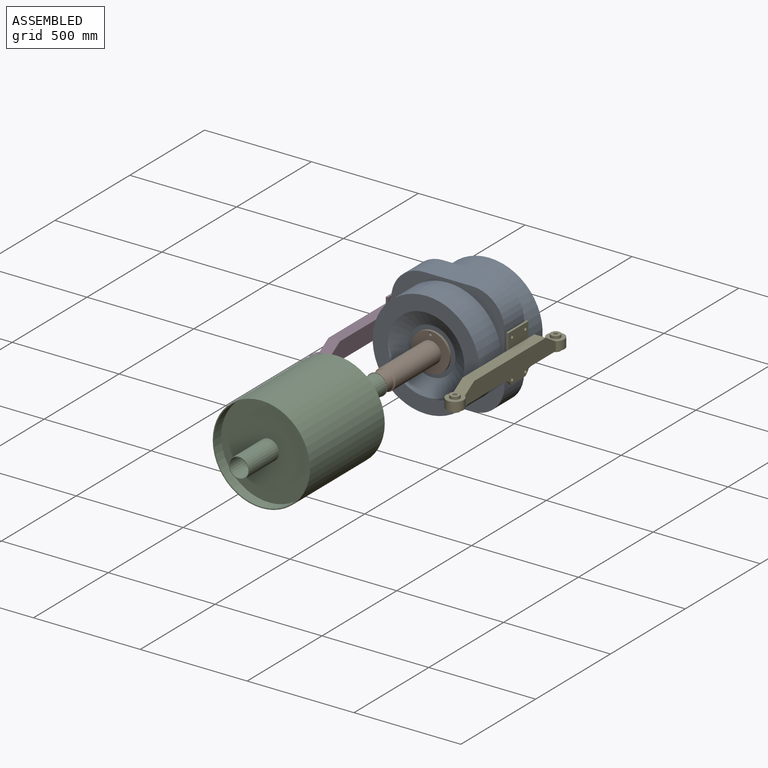
[diagram: assembled view]
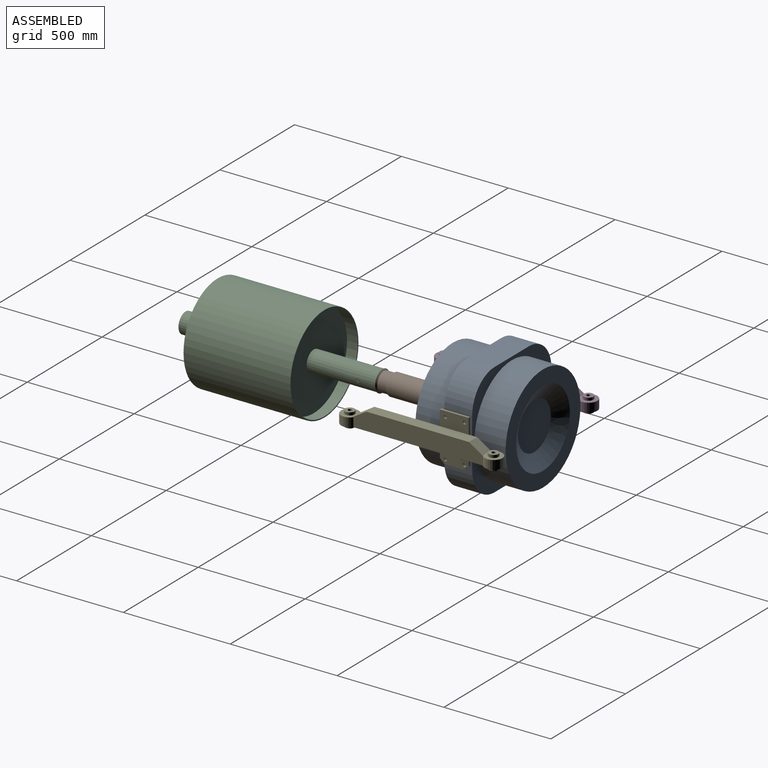
[diagram: assembled view, second angle]
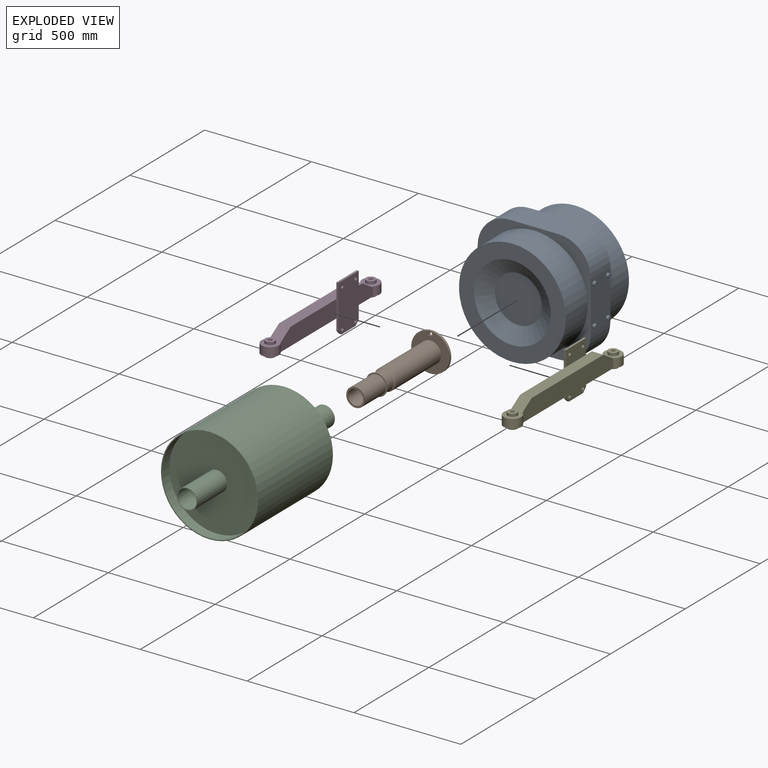
[diagram: exploded view]
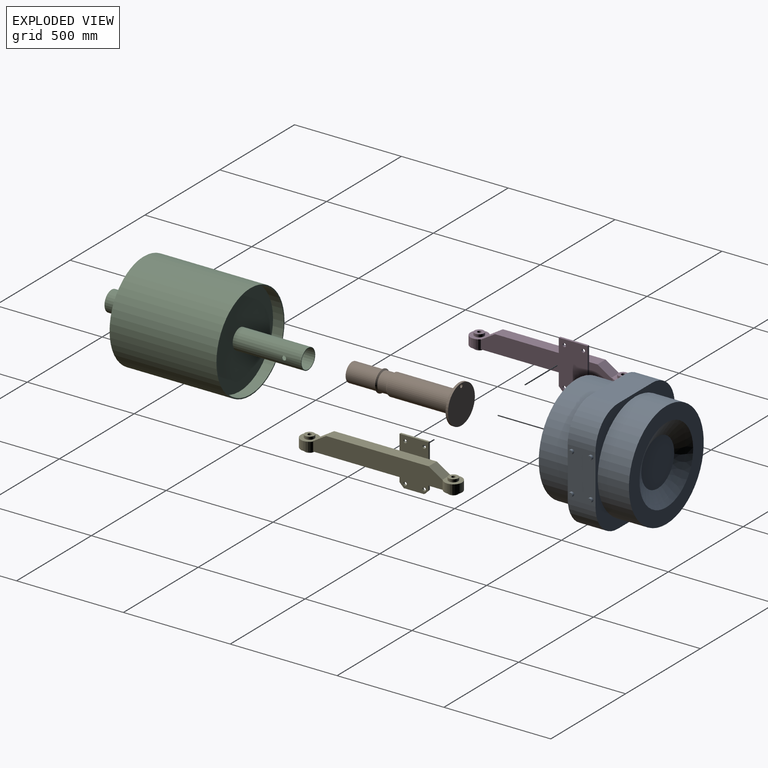
[diagram: exploded view, second angle]
ASSEMBLY  parts=5 mates=4
PART A: 34 faces, bbox 554x422x530 mm
  f0: plane 230x130mm, normal (0,0,1), area 29900mm2, adj f4,f5,f22,f25
  f1: plane 230x130mm, normal (-1,0,0), area 28643.4mm2, adj f4,f5,f8,f13,f17,f21,f22,f23
  f2: plane 230x130mm, normal (0,0,-1), area 29900mm2, adj f4,f5,f23,f24
  f3: plane 230x130mm, normal (1,0,0), area 28643.4mm2, adj f4,f5,f7,f11,f15,f19,f24,f25
  f4: plane 530x530mm, normal (0,-1,0), area 65236.3mm2, adj f0,f1,f2,f3,f22,f23,f24,f25
  f5: plane 530x530mm, normal (0,1,0), area 65236.3mm2, adj f0,f1,f2,f3,f22,f23,f24,f25
  f6: plane 20x20mm, normal (1,0,0), area 314.2mm2, adj f7
  f7: cylinder r=10mm len=20mm, axis (-1,0,0), area 754mm2, adj f3,f6
  f8: cylinder r=10mm len=20mm, axis (-1,0,0), area 754mm2, adj f1,f9
  f9: plane 20x20mm, normal (-1,0,0), area 314.2mm2, adj f8
  f10: plane 20x20mm, normal (1,0,0), area 314.2mm2, adj f11
  f11: cylinder r=10mm len=20mm, axis (-1,0,0), area 754mm2, adj f3,f10
  f12: plane 20x20mm, normal (-1,0,0), area 314.2mm2, adj f13
  f13: cylinder r=10mm len=20mm, axis (-1,0,0), area 754mm2, adj f1,f12
  f14: plane 20x20mm, normal (1,0,0), area 314.2mm2, adj f15
  f15: cylinder r=10mm len=20mm, axis (-1,0,0), area 754mm2, adj f3,f14
  f16: plane 20x20mm, normal (-1,0,0), area 314.2mm2, adj f17
  f17: cylinder r=10mm len=20mm, axis (-1,0,0), area 754mm2, adj f1,f16
  f18: plane 20x20mm, normal (1,0,0), area 314.2mm2, adj f19
  f19: cylinder r=10mm len=20mm, axis (-1,0,0), area 754mm2, adj f3,f18
  f20: plane 20x20mm, normal (-1,0,0), area 314.2mm2, adj f21
  f21: cylinder r=10mm len=20mm, axis (-1,0,0), area 754mm2, adj f1,f20
  f22: cylinder r=150mm len=150mm, axis (0,-1,0), area 30630.5mm2, adj f0,f1,f4,f5
  f23: cylinder r=150mm len=150mm, axis (0,1,0), area 30630.5mm2, adj f1,f2,f4,f5
  f24: cylinder r=150mm len=150mm, axis (0,-1,0), area 30630.5mm2, adj f2,f3,f4,f5
  f25: cylinder r=150mm len=150mm, axis (0,1,0), area 30630.5mm2, adj f0,f3,f4,f5
  f26: cylinder r=250mm len=500mm, axis (0,1,0), area 229336.3mm2, adj f4,f28
  f27: cylinder r=250mm len=500mm, axis (0,1,0), area 229336.3mm2, adj f5,f29
  f28: plane 500x500mm, normal (0,-1,0), area 95372.3mm2, adj f26,f32
  f29: plane 500x500mm, normal (0,1,0), area 95372.3mm2, adj f27,f33
  f30: plane 220x220mm, normal (0,1,0), area 38013.3mm2, adj f33
  f31: plane 220x220mm, normal (0,-1,0), area 38013.3mm2, adj f32
  f32: cone r=110mm half-angle=60deg, axis (0,-1,0), area 72704.5mm2, adj f28,f31
  f33: cone r=179.28mm half-angle=60deg, axis (0,1,0), area 72704.5mm2, adj f29,f30
PART B: 17 faces, bbox 180x511x180 mm
  f0: cylinder r=44mm len=88mm, axis (0,1,0), area 11611.3mm2, adj f6,f13
  f1: cylinder r=8mm len=16mm, axis (0,1,0), area 552.9mm2, adj f3,f4
  f2: cylinder r=90mm len=180mm, axis (0,1,0), area 6220.4mm2, adj f3,f4
  f3: plane 180x180mm, normal (0,-1,0), area 17391.9mm2, adj f1,f2,f5
  f4: plane 180x180mm, normal (0,1,0), area 25245.8mm2, adj f1,f2
  f5: cylinder r=50mm len=304mm, axis (0,1,0), area 95504.4mm2, adj f3,f6
  f6: cone r=44mm half-angle=45deg, axis (0,1,0), area 2505.8mm2, adj f0,f5
  f7: plane 100x100mm, normal (0,-1,0), area 1771.9mm2, adj f8,f9
  f8: cylinder r=50mm len=100mm, axis (0,-1,0), area 628.3mm2, adj f7,f13
  f9: cylinder r=44mm len=140mm, axis (0,1,0), area 38704.4mm2, adj f7,f10
  f10: plane 88x88mm, normal (0,-1,0), area 2233.7mm2, adj f9,f11
  f11: cylinder r=35mm len=140mm, axis (0,-1,0), area 30787.6mm2, adj f10,f12
  f12: plane 70x70mm, normal (0,-1,0), area 3848.5mm2, adj f11
  f13: cone r=50mm half-angle=45deg, axis (0,-1,0), area 2505.8mm2, adj f0,f8
  f14: plane 70x70mm, normal (0,1,0), area 3848.5mm2, adj f16
  f15: plane 70x70mm, normal (0,-1,0), area 3848.5mm2, adj f16
  f16: cylinder r=35mm len=202mm, axis (0,-1,0), area 44422.1mm2, adj f14,f15
PART C: 22 faces, bbox 920x455x455 mm
  f0: cylinder r=47.5mm len=200mm, axis (-1,0,0), area 59690.3mm2, adj f5,f13
  f1: cylinder r=222.5mm len=445mm, axis (-1,0,0), area 69900.4mm2, adj f11,f13
  f2: plane 445x445mm, normal (-1,0,0), area 148440.3mm2, adj f4,f9
  f3: cylinder r=44.3mm len=920mm, axis (-1,0,0), area 255446.2mm2, adj f5,f6,f7,f8
  f4: cylinder r=47.5mm len=320mm, axis (-1,0,0), area 94873.8mm2, adj f2,f6,f7,f8
  f5: plane 95x95mm, normal (1,0,0), area 922.9mm2, adj f0,f3
  f6: plane 95x95mm, normal (-1,0,0), area 922.9mm2, adj f3,f4
  f7: cylinder r=10mm len=20mm, axis (0,0,1), area 203.5mm2, adj f3,f4
  f8: cylinder r=10mm len=20mm, axis (0,0,1), area 203.5mm2, adj f3,f4
  f9: cylinder r=222.5mm len=445mm, axis (-1,0,0), area 69900.4mm2, adj f2,f12
  f10: cylinder r=227.5mm len=500mm, axis (-1,0,0), area 714712.3mm2, adj f11,f12
  f11: plane 455x455mm, normal (1,0,0), area 7068.6mm2, adj f1,f10
  f12: plane 455x455mm, normal (-1,0,0), area 7068.6mm2, adj f9,f10
  f13: plane 445x445mm, normal (1,0,0), area 148440.3mm2, adj f0,f1
  f14: cylinder r=47.5mm len=192.5mm, axis (-1,0,0), area 57451.9mm2, adj f15,f17
  f15: plane 445x445mm, normal (1,0,0), area 148440.3mm2, adj f14,f16
  f16: cylinder r=222.5mm len=445mm, axis (-1,0,0), area 269116.7mm2, adj f15,f17
  f17: plane 445x445mm, normal (-1,0,0), area 148440.3mm2, adj f14,f16
  f18: cylinder r=47.5mm len=192.5mm, axis (-1,0,0), area 57451.9mm2, adj f20,f21
  f19: cylinder r=222.5mm len=445mm, axis (-1,0,0), area 269116.7mm2, adj f20,f21
  f20: plane 445x445mm, normal (-1,0,0), area 148440.3mm2, adj f18,f19
  f21: plane 445x445mm, normal (1,0,0), area 148440.3mm2, adj f18,f19
PART D: 34 faces, bbox 82x755x225 mm
  f0: plane 372.05x82mm, normal (1,0,0), area 29146.5mm2, adj f2,f5,f6,f8,f10,f22
  f1: plane 609.77x82mm, normal (-1,0,0), area 47234.2mm2, adj f2,f4,f5,f6,f7,f8,f9,f10
  f2: plane 64.01x54mm, normal (0,-0.53,0.85), area 4076.1mm2, adj f0,f1,f5,f8
  f3: plane 110.05x82mm, normal (1,0,0), area 7462.5mm2, adj f4,f5,f6,f7,f9,f24
  f4: plane 64.01x54mm, normal (0,0.53,0.85), area 4076.1mm2, adj f1,f3,f5,f7
  f5: plane 480x54mm, normal (0,0,1), area 25920mm2, adj f0,f1,f2,f3,f4,f21
  f6: plane 755x82mm, normal (0,0,-1), area 39656mm2, adj f0,f1,f3,f9,f10,f12,f18,f31
  f7: plane 82x75.99mm, normal (0,0,1), area 3546.3mm2, adj f1,f3,f4,f9,f11
  f8: plane 82x74.24mm, normal (0,0,1), area 3276.3mm2, adj f0,f1,f2,f10,f16
  f9: cylinder r=41mm len=82mm, axis (0,0,-1), area 8329.4mm2, adj f1,f3,f6,f7
  f10: cylinder r=41mm len=82mm, axis (0,0,-1), area 8329.4mm2, adj f0,f1,f6,f8
  f11: cylinder r=22.5mm len=45mm, axis (0,0,-1), area 1837.8mm2, adj f7,f14
  f12: cylinder r=22.5mm len=45mm, axis (0,0,-1), area 1837.8mm2, adj f6,f15
  f13: cylinder r=9mm len=68mm, axis (0,0,-1), area 3845.3mm2, adj f14,f15
  f14: plane 45x45mm, normal (0,0,1), area 1336mm2, adj f11,f13
  f15: plane 45x45mm, normal (0,0,-1), area 1336mm2, adj f12,f13
  f16: cylinder r=22.5mm len=45mm, axis (0,0,-1), area 1837.8mm2, adj f8,f19
  f17: cylinder r=9mm len=68mm, axis (0,0,-1), area 3845.3mm2, adj f19,f20
  f18: cylinder r=22.5mm len=45mm, axis (0,0,-1), area 1837.8mm2, adj f6,f20
  f19: plane 45x45mm, normal (0,0,1), area 1336mm2, adj f16,f17
  f20: plane 45x45mm, normal (0,0,-1), area 1336mm2, adj f17,f18
  f21: plane 135x70.91mm, normal (-1,0,0), area 9170.1mm2, adj f5,f22,f24,f26,f27,f28
  f22: plane 205x10mm, normal (0,-1,0), area 2050mm2, adj f0,f21,f26,f30,f31,f33
  f23: plane 95x10mm, normal (0,0,-1), area 950mm2, adj f30,f31,f32,f33
  f24: plane 205x10mm, normal (0,1,0), area 2050mm2, adj f3,f21,f26,f30,f31,f32
  f25: cylinder r=8mm len=16mm, axis (-1,0,0), area 502.7mm2, adj f30,f31
  f26: plane 135x10mm, normal (0,0,1), area 1350mm2, adj f21,f22,f24,f30
  f27: cylinder r=8mm len=16mm, axis (-1,0,0), area 502.7mm2, adj f21,f30
  f28: cylinder r=8mm len=16mm, axis (-1,0,0), area 502.7mm2, adj f21,f30
  f29: cylinder r=8mm len=16mm, axis (-1,0,0), area 502.7mm2, adj f30,f31
  f30: plane 225x135mm, normal (1,0,0), area 29170.8mm2, adj f22,f23,f24,f25,f26,f27,f28,f29
  f31: plane 135x72.09mm, normal (-1,0,0), area 8930.6mm2, adj f6,f22,f23,f24,f25,f29,f32,f33
  f32: plane 20x20mm, normal (0,0.71,-0.71), area 282.8mm2, adj f23,f24,f30,f31
  f33: plane 20x20mm, normal (0,-0.71,-0.71), area 282.8mm2, adj f22,f23,f30,f31
PART E: 34 faces, bbox 82x755x225 mm
  f0: plane 372.05x82mm, normal (-1,0,0), area 29146.5mm2, adj f2,f5,f6,f8,f10,f22
  f1: plane 609.77x82mm, normal (1,0,0), area 47234.2mm2, adj f2,f4,f5,f6,f7,f8,f9,f10
  f2: plane 64.01x54mm, normal (0,-0.53,0.85), area 4076.1mm2, adj f0,f1,f5,f8
  f3: plane 110.05x82mm, normal (-1,0,0), area 7462.5mm2, adj f4,f5,f6,f7,f9,f24
  f4: plane 64.01x54mm, normal (0,0.53,0.85), area 4076.1mm2, adj f1,f3,f5,f7
  f5: plane 480x54mm, normal (0,0,1), area 25920mm2, adj f0,f1,f2,f3,f4,f21
  f6: plane 755x82mm, normal (0,0,-1), area 39656mm2, adj f0,f1,f3,f9,f10,f12,f18,f31
  f7: plane 82x75.99mm, normal (0,0,1), area 3546.3mm2, adj f1,f3,f4,f9,f11
  f8: plane 82x74.24mm, normal (0,0,1), area 3276.3mm2, adj f0,f1,f2,f10,f16
  f9: cylinder r=41mm len=82mm, axis (0,0,-1), area 8329.4mm2, adj f1,f3,f6,f7
  f10: cylinder r=41mm len=82mm, axis (0,0,-1), area 8329.4mm2, adj f0,f1,f6,f8
  f11: cylinder r=22.5mm len=45mm, axis (0,0,-1), area 1837.8mm2, adj f7,f14
  f12: cylinder r=22.5mm len=45mm, axis (0,0,-1), area 1837.8mm2, adj f6,f15
  f13: cylinder r=9mm len=68mm, axis (0,0,-1), area 3845.3mm2, adj f14,f15
  f14: plane 45x45mm, normal (0,0,1), area 1336mm2, adj f11,f13
  f15: plane 45x45mm, normal (0,0,-1), area 1336mm2, adj f12,f13
  f16: cylinder r=22.5mm len=45mm, axis (0,0,-1), area 1837.8mm2, adj f8,f19
  f17: cylinder r=9mm len=68mm, axis (0,0,-1), area 3845.3mm2, adj f19,f20
  f18: cylinder r=22.5mm len=45mm, axis (0,0,-1), area 1837.8mm2, adj f6,f20
  f19: plane 45x45mm, normal (0,0,1), area 1336mm2, adj f16,f17
  f20: plane 45x45mm, normal (0,0,-1), area 1336mm2, adj f17,f18
  f21: plane 135x70.91mm, normal (1,0,0), area 9170.1mm2, adj f5,f22,f24,f26,f27,f28
  f22: plane 205x10mm, normal (0,-1,0), area 2050mm2, adj f0,f21,f26,f30,f31,f33
  f23: plane 95x10mm, normal (0,0,-1), area 950mm2, adj f30,f31,f32,f33
  f24: plane 205x10mm, normal (0,1,0), area 2050mm2, adj f3,f21,f26,f30,f31,f32
  f25: cylinder r=8mm len=16mm, axis (1,0,0), area 502.7mm2, adj f30,f31
  f26: plane 135x10mm, normal (0,0,1), area 1350mm2, adj f21,f22,f24,f30
  f27: cylinder r=8mm len=16mm, axis (1,0,0), area 502.7mm2, adj f21,f30
  f28: cylinder r=8mm len=16mm, axis (1,0,0), area 502.7mm2, adj f21,f30
  f29: cylinder r=8mm len=16mm, axis (1,0,0), area 502.7mm2, adj f30,f31
  f30: plane 225x135mm, normal (-1,0,0), area 29170.8mm2, adj f22,f23,f24,f25,f26,f27,f28,f29
  f31: plane 135x72.09mm, normal (1,0,0), area 8930.6mm2, adj f6,f22,f23,f24,f25,f29,f32,f33
  f32: plane 20x20mm, normal (0,0.71,-0.71), area 282.8mm2, adj f23,f24,f30,f31
  f33: plane 20x20mm, normal (0,-0.71,-0.71), area 282.8mm2, adj f22,f23,f30,f31
PLACE A t=(226.81,511.31,204.19)mm fixed
PLACE B t=(226.81,340.31,204.19)mm
PLACE C rot(axis=(-0.58,0.58,-0.58),120deg) t=(226.81,-350.69,204.19)mm
PLACE D t=(-50.17,79.89,166.29)mm
PLACE E t=(503.83,79.89,166.29)mm
MATE fastened B.f2 <-> A.f32  axis (0,1,0) through (226.81,340.31,204.19)mm
MATE fastened A.f7 <-> D.f27  axis (-1,0,0) through (-50.19,466.31,294.19)mm
MATE slider C.f0 <-> B.f0  axis (0,1,0) through (226.81,-30.69,204.19)mm
MATE fastened E.f27 <-> A.f7  axis (-1,0,0) through (503.81,466.31,294.19)mm
